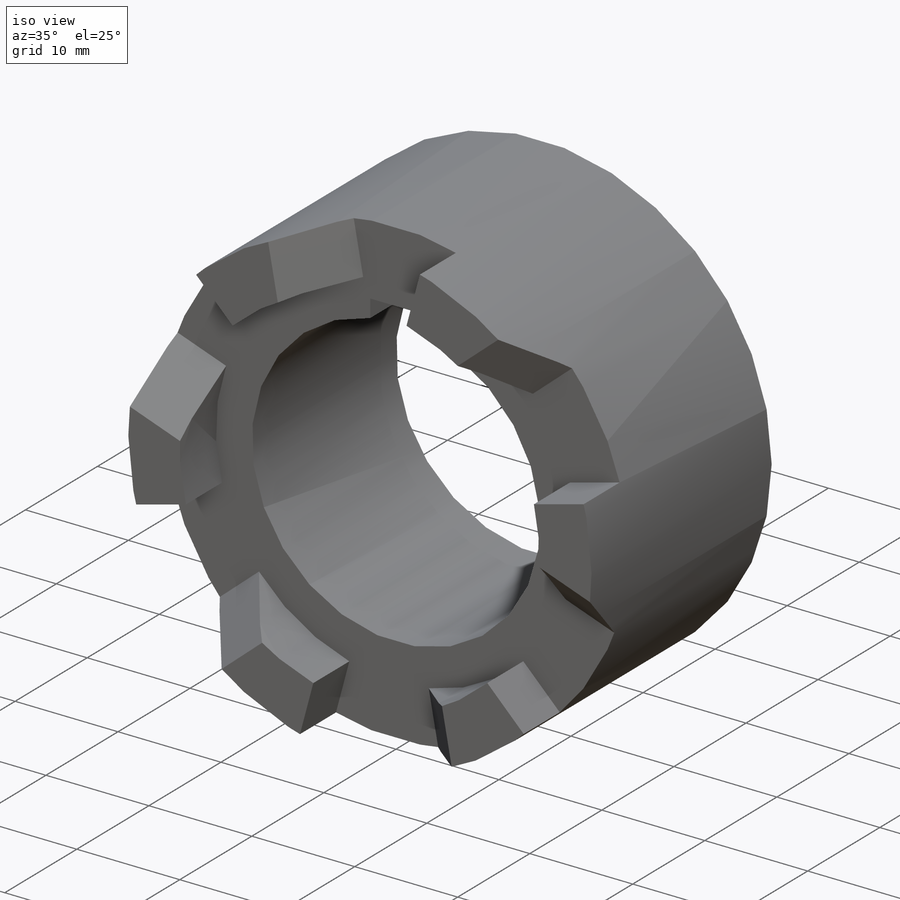
[diagram: iso view]
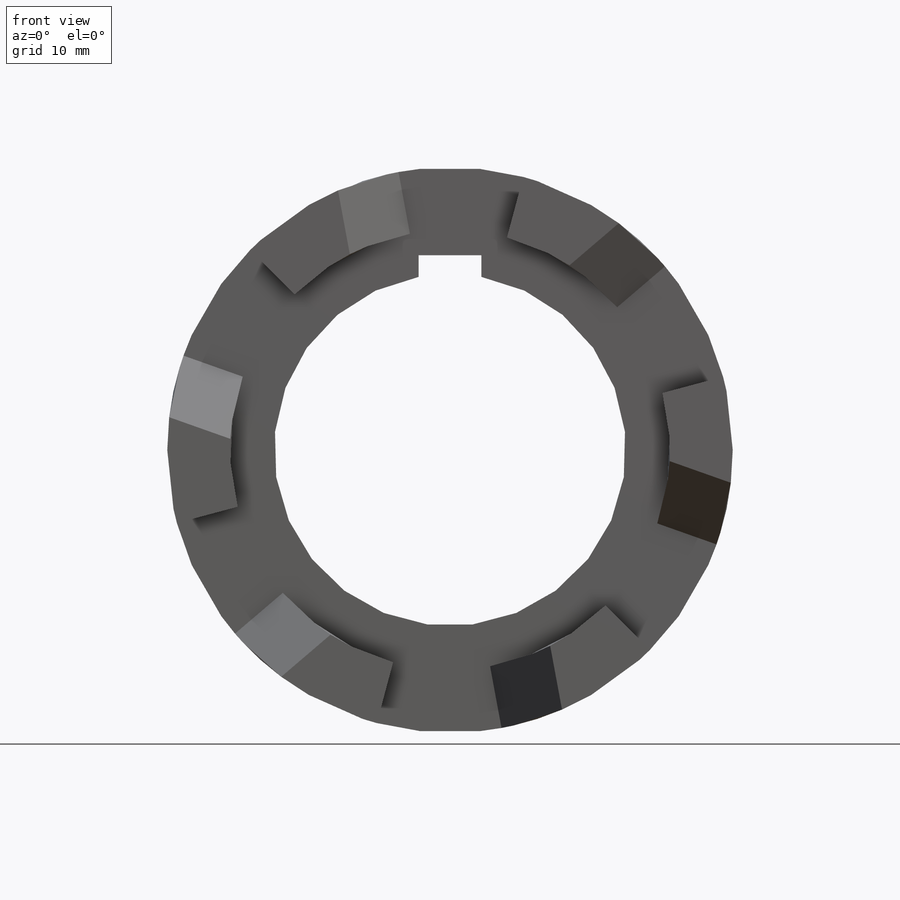
[diagram: front view]
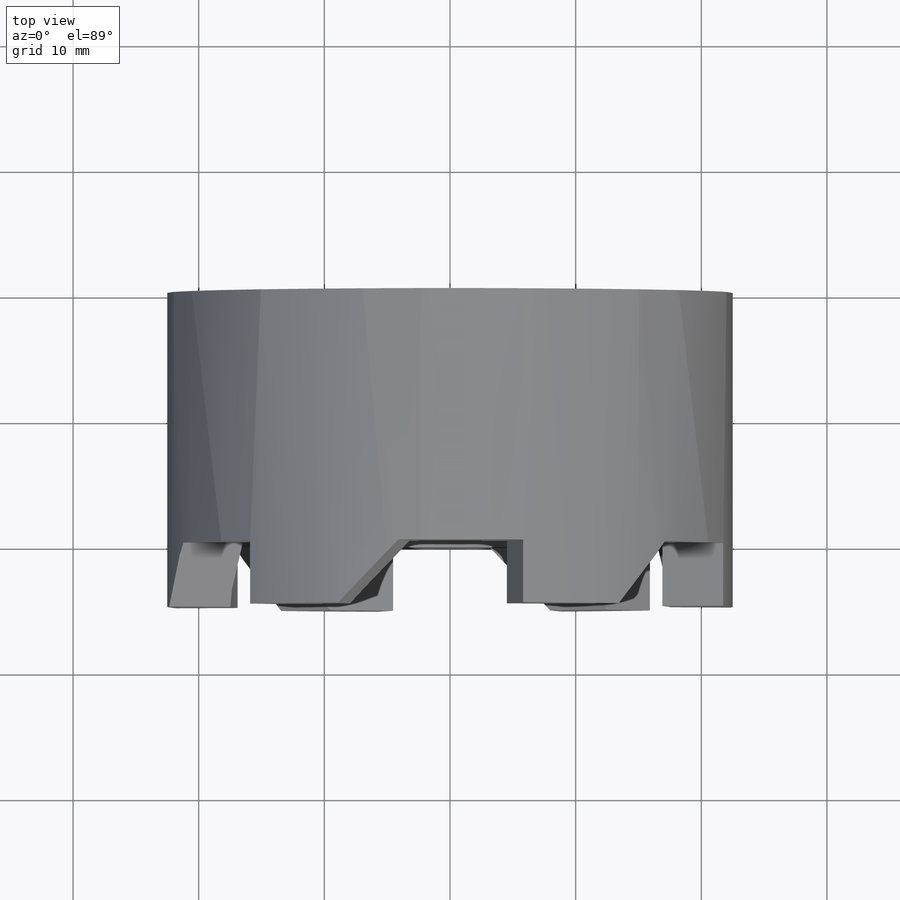
[diagram: top view]
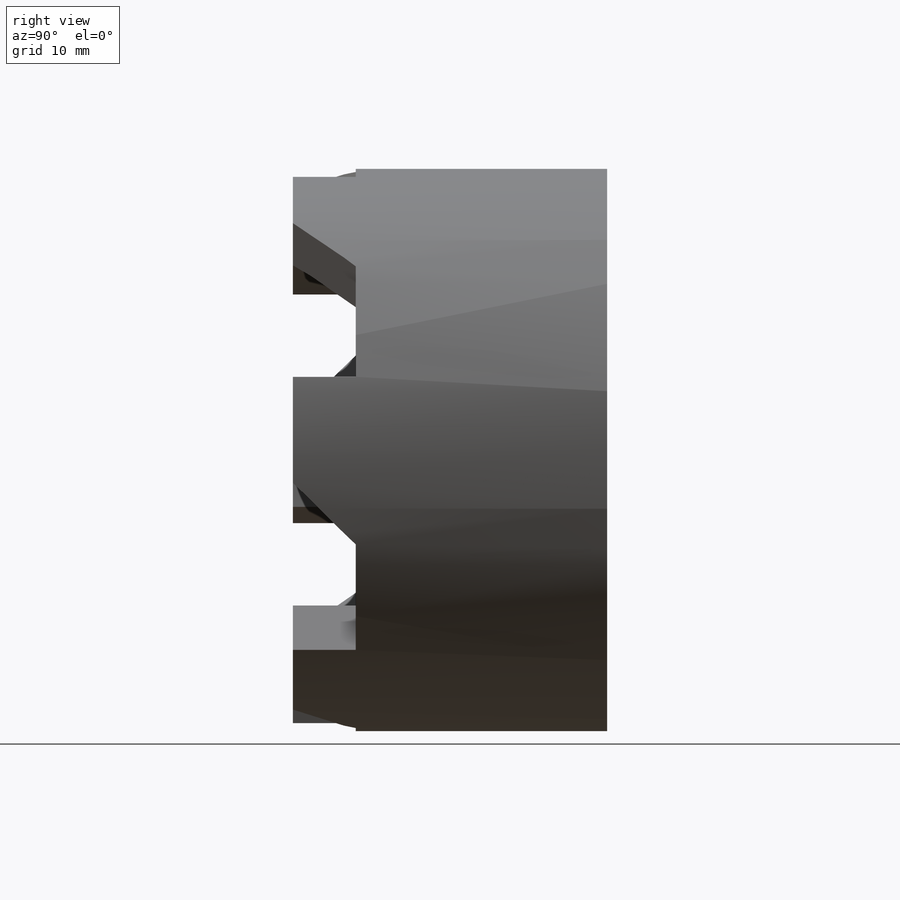
[diagram: right view]
SOLIDWORKS PART (.sldprt)
format: sldprt  version: not decoded by parser v0  size: 313,344 bytes
history: native  units: mm
features: sketch x4, extrude x2, pattern_circular x2, material x1, chamfer x1, hole x1, thread x1 (+14 scaffold rows collapsed)
feature tree (26):
  scaffold x14  (default folders/planes/origin — collapsed)
  material  "201 Annealed Stainless Steel (SS)"
  sketch  "Sketch1"  dims[c1.D1=45.0mm c1.D2=28.0mm c1.D4=28.0mm c1.D3=5.0mm c2.D4=1.5mm c2.D5=6.0mm]
  extrude  "Boss-Extrude1"  Depth=20mm
  sketch  "Sketch2"  dims[c1.D1=~36.531393mm c1.D3=~51.17038mm c2.D1=5.0mm c2.D2=~21.952864mm c3.D2=45.0deg c3.D3=9.0mm c3.D4=~26.247659mm c4.D4=60.0deg c4.D5=~15.909903mm c5.D5=45.0deg c5.D2=22.5mm c6.D2=60.0deg c6.D3=~19.485572mm c7.D3=60.0deg c7.D4=~25.907122mm c8.D4=30.0deg c8.D6=~15.909903mm c9.D6=15.0deg c10.D6=22.5mm c11.D6=30.0deg c12.D6=~21.733331mm c13.D6=30.0deg c14.D6=~11.646857mm c14.D7=~11.646857mm c14.D3=~25.360828mm c15.D3=30.0deg c15.D5=22.5mm c16.D5=30.0deg c16.D6=~19.485572mm c17.D6=60.0deg c17.D7=~11.646857mm c17.D8=~11.646857mm c17.D9=~11.646857mm c17.D10=~4.829629mm c18.D10=15.0deg c18.D11=~4.829629mm c19.D11=15.0deg c20.D11=5.0mm c21.D11=30.0deg c21.D1=~21.521392mm c22.D1=30.0deg c22.D2=~11.05352mm c23.D2=15.0deg c23.D3=5.0mm c23.D4=13.1716mm c24.D4=15.0deg c24.D5=~19.485572mm c25.D5=15.0deg c25.D6=22.5mm c26.D6=15.0deg c26.D7=~11.646857mm c26.D8=5.0mm c26.D9=22.5mm c27.D9=10.0deg c27.D10=22.5mm c28.D10=15.0deg c28.D11=22.5mm c29.D11=15.0deg c29.D12=5.0mm c29.D13=5.0mm c29.D14=5.0mm c29.D7=5.0mm c29.D15=15.5mm c30.D15=10.5deg c30.D4=22.5mm c31.D4=30.0deg c31.D6=22.5mm c32.D6=30.0deg c32.D11=22.5mm c33.D11=30.0deg c33.D10=22.5mm c34.D10=30.0deg c34.D11=~4.829629mm c35.D11=15.0deg c35.D16=~3.907084mm]
  extrude  "Boss-Extrude2"  Depth=5mm
  chamfer  "Chamfer2"  Distance=5mm Angle=45deg
  pattern_circular  "CirPattern1"  Count=6 Angle=60deg
  hole  "M4 Tapped Hole1"  Diameter=3.3mm Depth=11.5mm
  sketch  "3DSketch1"  dims[D1=3.5mm]
  sketch  "Sketch4"  dims[hole-wizard template sketch: 47 standard entries collapsed; hole parameters kept: c15.Tap Drill Depth=11.5mm c15.D3=~14.816244mm c15.Drill Angle=118.0deg]
  thread  "Hole Thread1"  Diameter=8mm  [1 undecoded]
  pattern_circular  "CirPattern2"  Count=4 Angle=90deg
decode coverage: 11 of 11 modeling features carry decoded parameters
note: ~ marks probable driven/reference dimensions
note: 1 parameter value undecoded
note: suppression state not decoded; provenance and decode notes live in map.json
